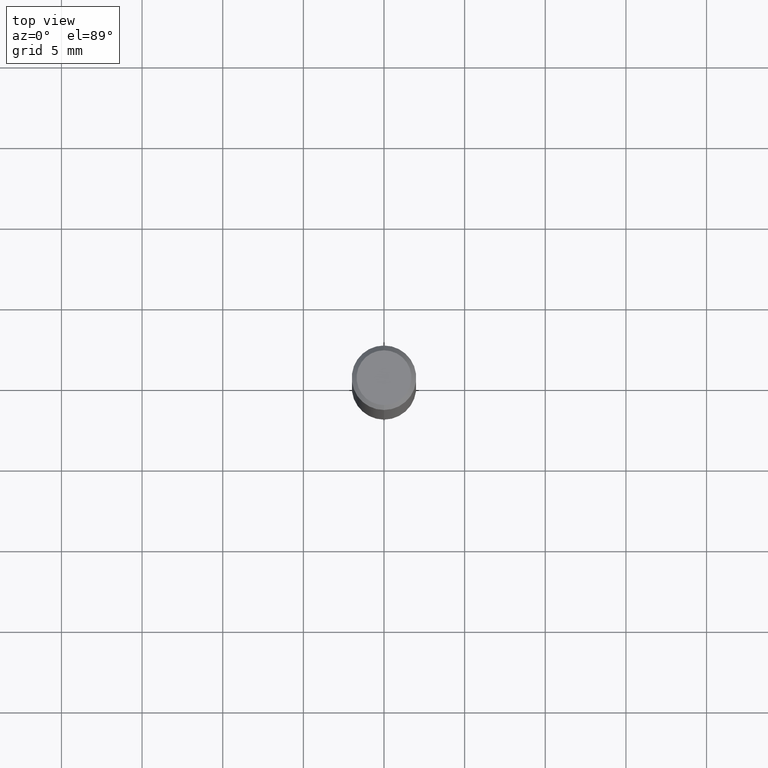
[diagram: clean part render]
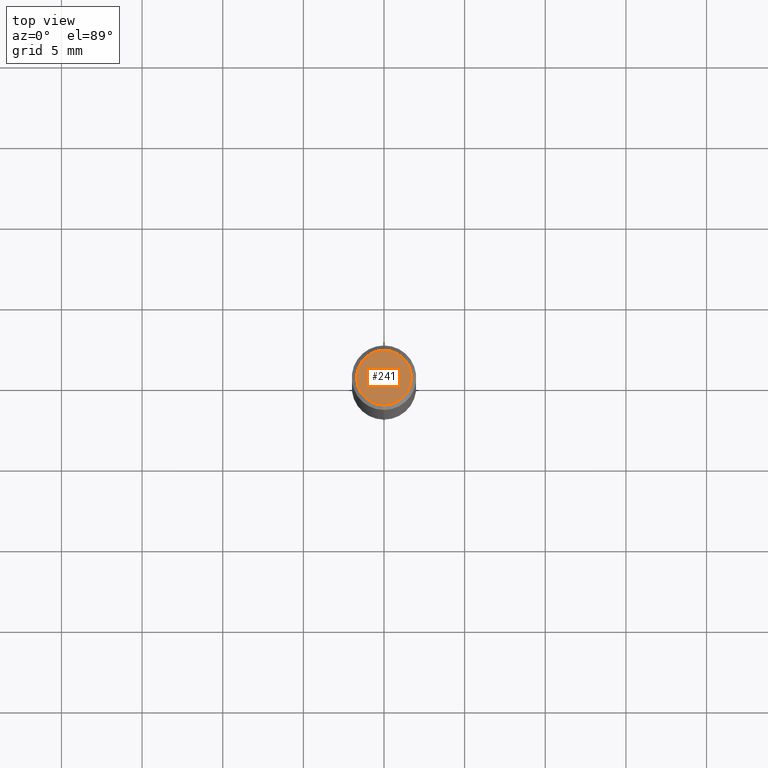
[diagram: same view with one face highlighted and labeled with its STEP entity id]
A machine part, top view. The second image highlights one B-rep face of the part: STEP entity #241.
In plain terms, the highlighted planar face has unit normal (-0, 0, 1).
Its self-contained STEP definition (entity closure, byte-faithful):
#117=VERTEX_POINT('',#290);
#177=EDGE_CURVE('',#229,#117,#362,.T.);
#229=VERTEX_POINT('',#420);
#241=ADVANCED_FACE('',(#432),#433,.T.);
#257=EDGE_CURVE('',#117,#229,#450,.T.);
#290=CARTESIAN_POINT('',(0.0,1.7,0.0));
#362=CIRCLE('',#565,1.7);
#420=CARTESIAN_POINT('',(2.08183080149804E-016,-1.7,0.0));
#432=FACE_OUTER_BOUND('',#656,.T.);
#433=PLANE('',#657);
#450=CIRCLE('',#678,1.7);
#565=AXIS2_PLACEMENT_3D('',#800,#801,#802);
#656=EDGE_LOOP('',(#880,#881));
#657=AXIS2_PLACEMENT_3D('',#882,#883,#884);
#678=AXIS2_PLACEMENT_3D('',#897,#898,#899);
#800=CARTESIAN_POINT('',(0.0,0.0,0.0));
#801=DIRECTION('',(0.0,0.0,-1.0));
#802=DIRECTION('',(0.0,1.0,0.0));
#880=ORIENTED_EDGE('',*,*,#257,.F.);
#881=ORIENTED_EDGE('',*,*,#177,.F.);
#882=CARTESIAN_POINT('',(0.0,0.85,0.0));
#883=DIRECTION('',(-0.0,0.0,1.0));
#884=DIRECTION('',(0.0,-1.0,0.0));
#897=CARTESIAN_POINT('',(0.0,0.0,0.0));
#898=DIRECTION('',(0.0,0.0,-1.0));
#899=DIRECTION('',(0.0,1.0,0.0));